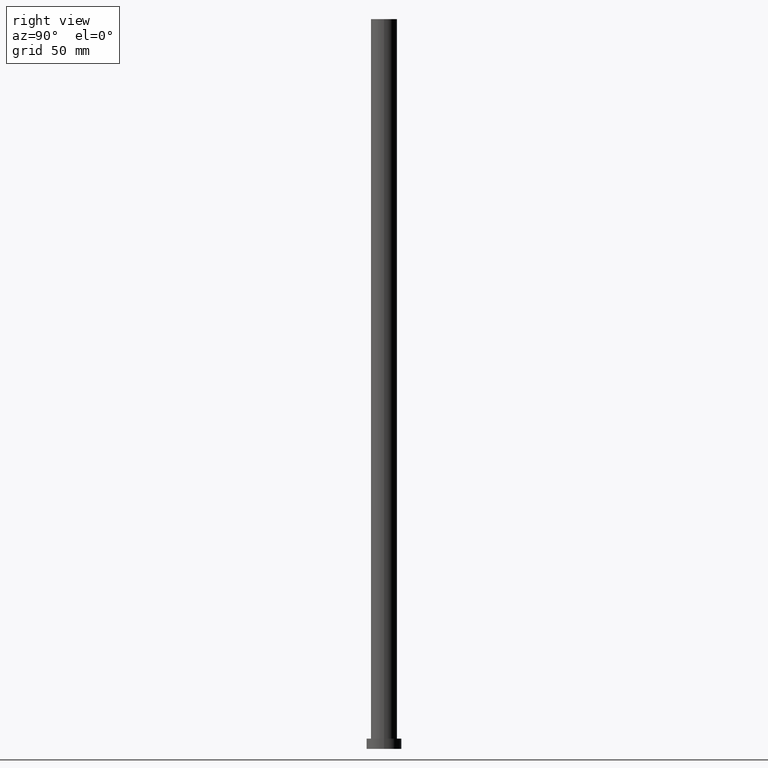
[diagram: clean part render]
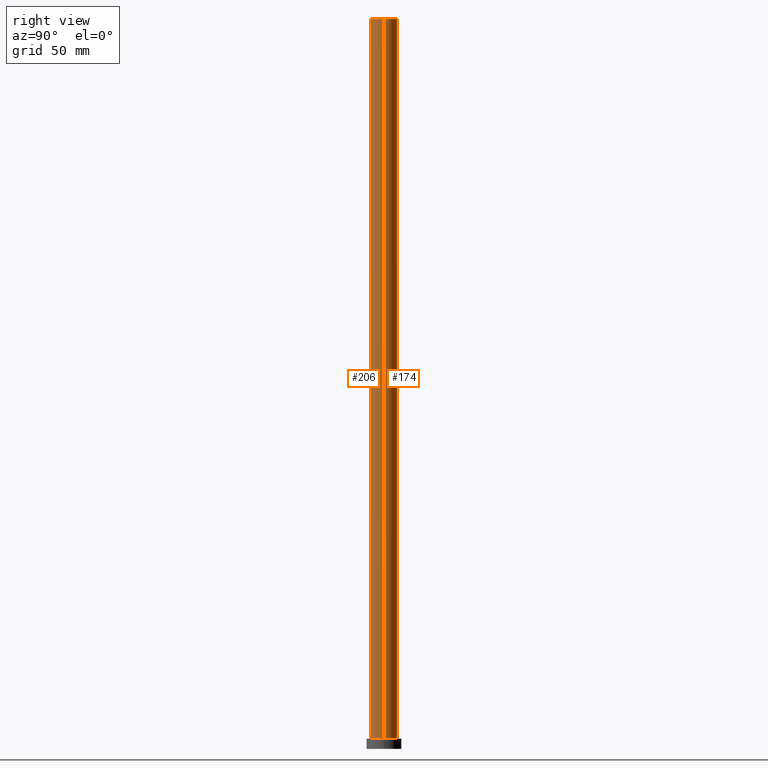
[diagram: same view with one multi-face feature highlighted, each face labeled with its STEP entity id]
A machine part, right view. The highlighted faces form ONE feature: a constant-radius fillet chain: 2 tangent blend faces with common blend radius 9 mm. The faces share edges in the B-rep.
Their STEP definitions:
[1] entity #174 (Cylinder):
#12 = EDGE_CURVE ( 'NONE', #64, #225, #224, .T. ) ;
#24 = VERTEX_POINT ( 'NONE', #236 ) ;
#31 = DIRECTION ( 'NONE',  ( -0.000000000000000000, -0.000000000000000000, -1.000000000000000000 ) ) ;
#34 = DIRECTION ( 'NONE',  ( -0.000000000000000000, -0.000000000000000000, -1.000000000000000000 ) ) ;
#46 = DIRECTION ( 'NONE',  ( 0.000000000000000000, 0.000000000000000000, 1.000000000000000000 ) ) ;
#64 = VERTEX_POINT ( 'NONE', #129 ) ;
#68 = CARTESIAN_POINT ( 'NONE',  ( 0.000000000000000000, 0.000000000000000000, 7.000000000000000000 ) ) ;
#80 = CARTESIAN_POINT ( 'NONE',  ( -9.000000000000001776, 0.000000000000000000, 500.0000000000000000 ) ) ;
#98 = CARTESIAN_POINT ( 'NONE',  ( -9.000000000000001776, 0.000000000000000000, 7.000000000000000000 ) ) ;
#106 = ORIENTED_EDGE ( 'NONE', *, *, #223, .F. ) ;
#111 = EDGE_CURVE ( 'NONE', #202, #64, #191, .T. ) ;
#116 = CARTESIAN_POINT ( 'NONE',  ( 9.000000000000001776, 1.102182119232617911E-15, 500.0000000000000000 ) ) ;
#122 = CARTESIAN_POINT ( 'NONE',  ( 0.000000000000000000, 0.000000000000000000, 500.0000000000000000 ) ) ;
#129 = CARTESIAN_POINT ( 'NONE',  ( 9.000000000000001776, 1.102182119232617911E-15, 7.000000000000000000 ) ) ;
#145 = AXIS2_PLACEMENT_3D ( 'NONE', #148, #34, #189 ) ;
#146 = FACE_OUTER_BOUND ( 'NONE', #161, .T. ) ;
#148 = CARTESIAN_POINT ( 'NONE',  ( 0.000000000000000000, 0.000000000000000000, 500.0000000000000000 ) ) ;
#153 = DIRECTION ( 'NONE',  ( 1.000000000000000000, 0.000000000000000000, 0.000000000000000000 ) ) ;
#155 = AXIS2_PLACEMENT_3D ( 'NONE', #122, #200, #153 ) ;
#161 = EDGE_LOOP ( 'NONE', ( #106, #182, #166, #205 ) ) ;
#166 = ORIENTED_EDGE ( 'NONE', *, *, #12, .T. ) ;
#174 = ADVANCED_FACE ( 'NONE', ( #146 ), #233, .T. ) ;
#182 = ORIENTED_EDGE ( 'NONE', *, *, #111, .T. ) ;
#185 = AXIS2_PLACEMENT_3D ( 'NONE', #68, #46, #209 ) ;
#188 = VECTOR ( 'NONE', #218, 1000.000000000000000 ) ;
#189 = DIRECTION ( 'NONE',  ( -1.000000000000000000, 0.000000000000000000, 0.000000000000000000 ) ) ;
#191 = LINE ( 'NONE', #116, #201 ) ;
#199 = LINE ( 'NONE', #80, #188 ) ;
#200 = DIRECTION ( 'NONE',  ( 0.000000000000000000, 0.000000000000000000, 1.000000000000000000 ) ) ;
#201 = VECTOR ( 'NONE', #31, 1000.000000000000000 ) ;
#202 = VERTEX_POINT ( 'NONE', #231 ) ;
#205 = ORIENTED_EDGE ( 'NONE', *, *, #250, .F. ) ;
#209 = DIRECTION ( 'NONE',  ( 1.000000000000000000, 0.000000000000000000, 0.000000000000000000 ) ) ;
#218 = DIRECTION ( 'NONE',  ( -0.000000000000000000, -0.000000000000000000, -1.000000000000000000 ) ) ;
#223 = EDGE_CURVE ( 'NONE', #202, #24, #232, .T. ) ;
#224 = CIRCLE ( 'NONE', #185, 9.000000000000001776 ) ;
#225 = VERTEX_POINT ( 'NONE', #98 ) ;
#231 = CARTESIAN_POINT ( 'NONE',  ( 9.000000000000001776, 1.102182119232617911E-15, 500.0000000000000000 ) ) ;
#232 = CIRCLE ( 'NONE', #155, 9.000000000000001776 ) ;
#233 = CYLINDRICAL_SURFACE ( 'NONE', #145, 9.000000000000001776 ) ;
#236 = CARTESIAN_POINT ( 'NONE',  ( -9.000000000000001776, 0.000000000000000000, 500.0000000000000000 ) ) ;
#250 = EDGE_CURVE ( 'NONE', #24, #225, #199, .T. ) ;
[2] entity #206 (Cylinder):
#1 = DIRECTION ( 'NONE',  ( 1.000000000000000000, 0.000000000000000000, 0.000000000000000000 ) ) ;
#9 = ORIENTED_EDGE ( 'NONE', *, *, #54, .F. ) ;
#23 = CARTESIAN_POINT ( 'NONE',  ( 0.000000000000000000, 0.000000000000000000, 500.0000000000000000 ) ) ;
#24 = VERTEX_POINT ( 'NONE', #236 ) ;
#25 = ORIENTED_EDGE ( 'NONE', *, *, #111, .F. ) ;
#31 = DIRECTION ( 'NONE',  ( -0.000000000000000000, -0.000000000000000000, -1.000000000000000000 ) ) ;
#35 = AXIS2_PLACEMENT_3D ( 'NONE', #214, #211, #167 ) ;
#48 = EDGE_CURVE ( 'NONE', #225, #64, #238, .T. ) ;
#49 = FACE_OUTER_BOUND ( 'NONE', #61, .T. ) ;
#54 = EDGE_CURVE ( 'NONE', #24, #202, #180, .T. ) ;
#61 = EDGE_LOOP ( 'NONE', ( #25, #9, #141, #245 ) ) ;
#64 = VERTEX_POINT ( 'NONE', #129 ) ;
#75 = AXIS2_PLACEMENT_3D ( 'NONE', #172, #170, #1 ) ;
#80 = CARTESIAN_POINT ( 'NONE',  ( -9.000000000000001776, 0.000000000000000000, 500.0000000000000000 ) ) ;
#98 = CARTESIAN_POINT ( 'NONE',  ( -9.000000000000001776, 0.000000000000000000, 7.000000000000000000 ) ) ;
#111 = EDGE_CURVE ( 'NONE', #202, #64, #191, .T. ) ;
#116 = CARTESIAN_POINT ( 'NONE',  ( 9.000000000000001776, 1.102182119232617911E-15, 500.0000000000000000 ) ) ;
#119 = DIRECTION ( 'NONE',  ( -1.000000000000000000, 0.000000000000000000, 0.000000000000000000 ) ) ;
#120 = CYLINDRICAL_SURFACE ( 'NONE', #138, 9.000000000000001776 ) ;
#129 = CARTESIAN_POINT ( 'NONE',  ( 9.000000000000001776, 1.102182119232617911E-15, 7.000000000000000000 ) ) ;
#138 = AXIS2_PLACEMENT_3D ( 'NONE', #23, #176, #119 ) ;
#141 = ORIENTED_EDGE ( 'NONE', *, *, #250, .T. ) ;
#167 = DIRECTION ( 'NONE',  ( 1.000000000000000000, 0.000000000000000000, 0.000000000000000000 ) ) ;
#170 = DIRECTION ( 'NONE',  ( 0.000000000000000000, 0.000000000000000000, 1.000000000000000000 ) ) ;
#172 = CARTESIAN_POINT ( 'NONE',  ( 0.000000000000000000, 0.000000000000000000, 7.000000000000000000 ) ) ;
#176 = DIRECTION ( 'NONE',  ( -0.000000000000000000, -0.000000000000000000, -1.000000000000000000 ) ) ;
#180 = CIRCLE ( 'NONE', #35, 9.000000000000001776 ) ;
#188 = VECTOR ( 'NONE', #218, 1000.000000000000000 ) ;
#191 = LINE ( 'NONE', #116, #201 ) ;
#199 = LINE ( 'NONE', #80, #188 ) ;
#201 = VECTOR ( 'NONE', #31, 1000.000000000000000 ) ;
#202 = VERTEX_POINT ( 'NONE', #231 ) ;
#206 = ADVANCED_FACE ( 'NONE', ( #49 ), #120, .T. ) ;
#211 = DIRECTION ( 'NONE',  ( 0.000000000000000000, 0.000000000000000000, 1.000000000000000000 ) ) ;
#214 = CARTESIAN_POINT ( 'NONE',  ( 0.000000000000000000, 0.000000000000000000, 500.0000000000000000 ) ) ;
#218 = DIRECTION ( 'NONE',  ( -0.000000000000000000, -0.000000000000000000, -1.000000000000000000 ) ) ;
#225 = VERTEX_POINT ( 'NONE', #98 ) ;
#231 = CARTESIAN_POINT ( 'NONE',  ( 9.000000000000001776, 1.102182119232617911E-15, 500.0000000000000000 ) ) ;
#236 = CARTESIAN_POINT ( 'NONE',  ( -9.000000000000001776, 0.000000000000000000, 500.0000000000000000 ) ) ;
#238 = CIRCLE ( 'NONE', #75, 9.000000000000001776 ) ;
#245 = ORIENTED_EDGE ( 'NONE', *, *, #48, .T. ) ;
#250 = EDGE_CURVE ( 'NONE', #24, #225, #199, .T. ) ;